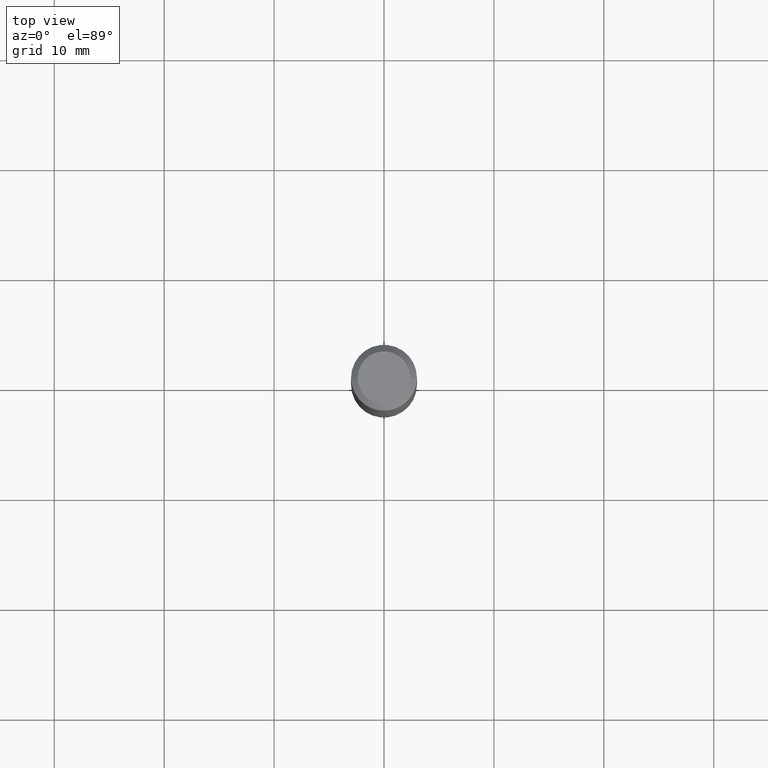
[diagram: clean part render]
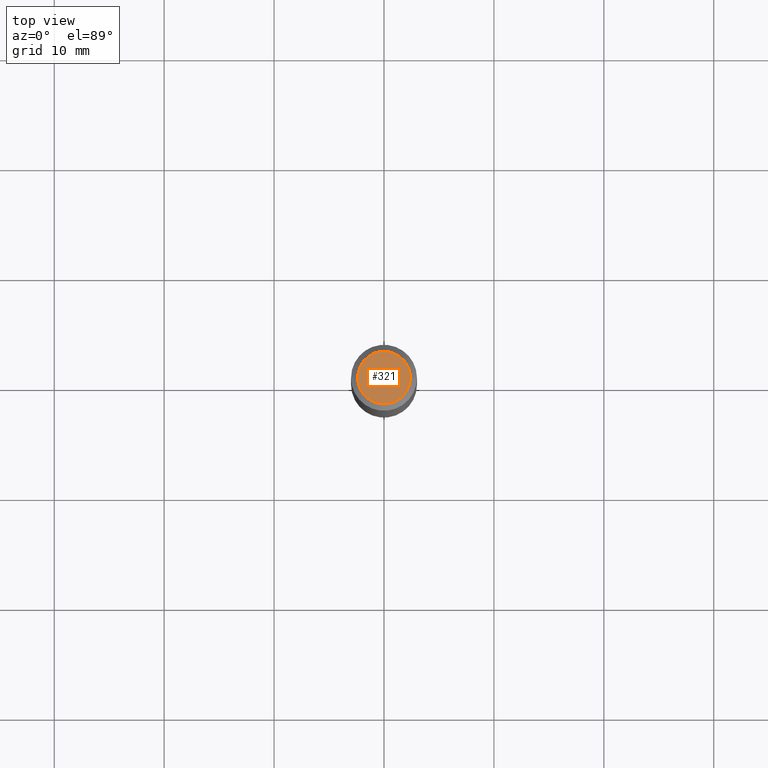
[diagram: same view with one face highlighted and labeled with its STEP entity id]
A machine part, top view. The second image highlights one B-rep face of the part: STEP entity #321.
In plain terms, the highlighted planar face has unit normal (0, -0, -1).
Its self-contained STEP definition (entity closure, byte-faithful):
#9 = CARTESIAN_POINT ( 'NONE',  ( 4.716267017698007905E-46, -6.733579360998555036E-32, -1.928573779297252010E-17 ) ) ;
#10 = CARTESIAN_POINT ( 'NONE',  ( -0.09447999999999998066, 7.009847083995354710E-16, -1.928573779297727792E-17 ) ) ;
#28 = AXIS2_PLACEMENT_3D ( 'NONE', #132, #350, #272 ) ;
#29 = EDGE_LOOP ( 'NONE', ( #327, #377 ) ) ;
#42 = AXIS2_PLACEMENT_3D ( 'NONE', #482, #443, #399 ) ;
#58 = CIRCLE ( 'NONE', #139, 0.09447999999999998066 ) ;
#67 = FACE_OUTER_BOUND ( 'NONE', #29, .T. ) ;
#82 = DIRECTION ( 'NONE',  ( -2.445468806185136597E-29, 3.491481338843145583E-15, 1.000000000000000000 ) ) ;
#83 = VERTEX_POINT ( 'NONE', #472 ) ;
#132 = CARTESIAN_POINT ( 'NONE',  ( 4.716267017698007905E-46, -6.733579360998555036E-32, -1.928573779297252010E-17 ) ) ;
#138 = PLANE ( 'NONE',  #42 ) ;
#139 = AXIS2_PLACEMENT_3D ( 'NONE', #9, #82, #153 ) ;
#153 = DIRECTION ( 'NONE',  ( 1.000000000000000000, -6.982962677686267499E-15, 4.875432709231658792E-29 ) ) ;
#258 = EDGE_CURVE ( 'NONE', #490, #83, #404, .T. ) ;
#272 = DIRECTION ( 'NONE',  ( 1.000000000000000000, -6.982962677686267499E-15, 4.875432709231658792E-29 ) ) ;
#321 = ADVANCED_FACE ( 'NONE', ( #67 ), #138, .F. ) ;
#327 = ORIENTED_EDGE ( 'NONE', *, *, #258, .T. ) ;
#350 = DIRECTION ( 'NONE',  ( -2.445468806185136597E-29, 3.491481338843145583E-15, 1.000000000000000000 ) ) ;
#377 = ORIENTED_EDGE ( 'NONE', *, *, #393, .T. ) ;
#393 = EDGE_CURVE ( 'NONE', #83, #490, #58, .T. ) ;
#399 = DIRECTION ( 'NONE',  ( -1.000000000000000000, 6.982962677686265922E-15, -4.876176775795935793E-29 ) ) ;
#404 = CIRCLE ( 'NONE', #28, 0.09447999999999998066 ) ;
#443 = DIRECTION ( 'NONE',  ( 2.438088387897960049E-29, -3.491481338843145188E-15, -1.000000000000000000 ) ) ;
#472 = CARTESIAN_POINT ( 'NONE',  ( 0.09447999999999998066, -7.704367267948738690E-16, -1.928573779296752193E-17 ) ) ;
#482 = CARTESIAN_POINT ( 'NONE',  ( 2.358133508849003952E-46, -3.366789680499277518E-32, -9.642868896486260050E-18 ) ) ;
#490 = VERTEX_POINT ( 'NONE', #10 ) ;